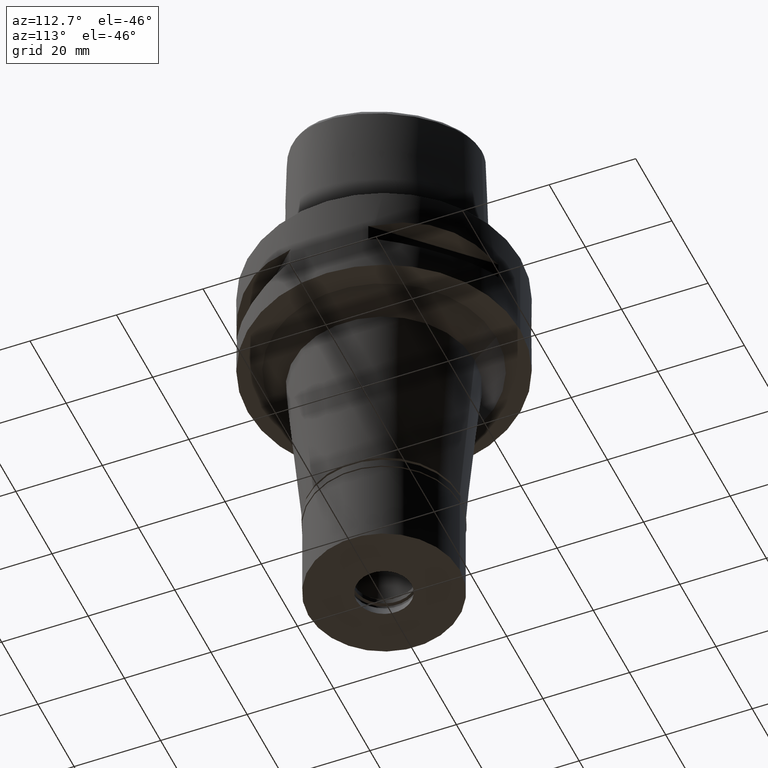
[diagram: clean part render]
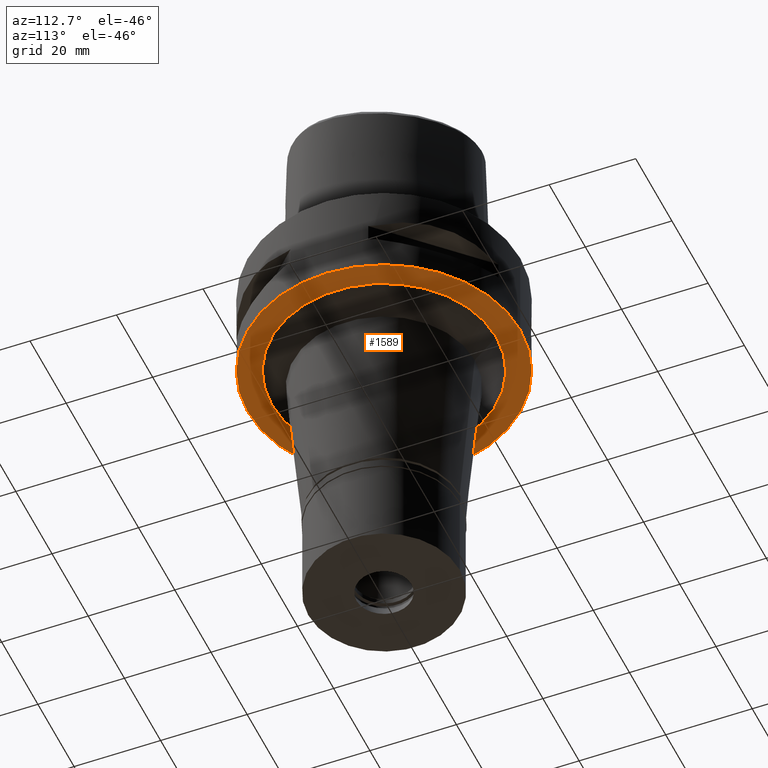
[diagram: same view with one face highlighted and labeled with its STEP entity id]
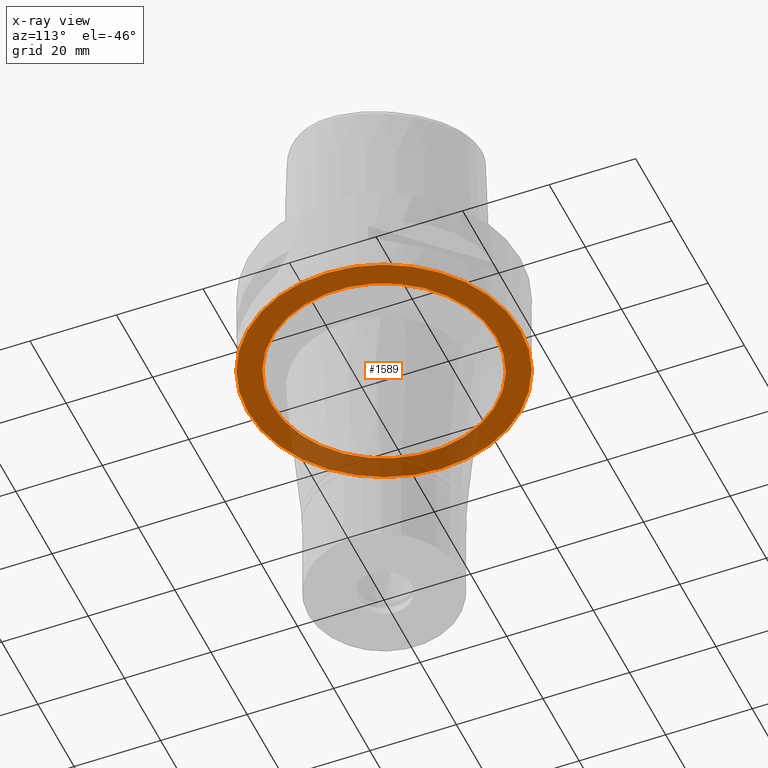
[diagram: x-ray of the same camera — body ghosted, the highlighted face saturated]
A machine part, auxiliary view. The second image highlights one B-rep face of the part: STEP entity #1589.
The next image is the same camera in x-ray: the body ghosted, the highlighted face saturated — about 24% of this face is hidden behind the body in this view.
In plain terms, the highlighted planar face has unit normal (0, 0, -1).
Its self-contained STEP definition (entity closure, byte-faithful):
#25 = AXIS2_PLACEMENT_3D ( 'NONE', #624, #2162, #3692 ) ;
#76 = EDGE_LOOP ( 'NONE', ( #2165, #3222 ) ) ;
#114 = CIRCLE ( 'NONE', #4382, 31.50000000000000000 ) ;
#130 = CARTESIAN_POINT ( 'NONE',  ( 0.0000000000000000000, 0.0000000000000000000, -22.00000000000000000 ) ) ;
#296 = CARTESIAN_POINT ( 'NONE',  ( 0.0000000000000000000, 1.275653338331999844E-14, -22.00000000000000000 ) ) ;
#614 = CARTESIAN_POINT ( 'NONE',  ( 0.0000000000000000000, -31.50000000000000000, -22.00000000000000000 ) ) ;
#624 = CARTESIAN_POINT ( 'NONE',  ( 0.0000000000000000000, 0.0000000000000000000, -22.00000000000000000 ) ) ;
#861 = ORIENTED_EDGE ( 'NONE', *, *, #1856, .F. ) ;
#942 = EDGE_CURVE ( 'NONE', #4507, #4936, #2199, .T. ) ;
#1209 = CARTESIAN_POINT ( 'NONE',  ( 0.0000000000000000000, 0.0000000000000000000, -22.00000000000000000 ) ) ;
#1292 = EDGE_CURVE ( 'NONE', #4554, #4194, #114, .T. ) ;
#1426 = DIRECTION ( 'NONE',  ( 0.0000000000000000000, 1.000000000000000000, 0.0000000000000000000 ) ) ;
#1503 = CARTESIAN_POINT ( 'NONE',  ( 0.0000000000000000000, 1.275653338331999844E-14, -22.00000000000000000 ) ) ;
#1562 = AXIS2_PLACEMENT_3D ( 'NONE', #130, #3200, #3606 ) ;
#1589 = ADVANCED_FACE ( 'NONE', ( #4721, #2028 ), #3909, .T. ) ;
#1856 = EDGE_CURVE ( 'NONE', #4194, #4554, #3331, .T. ) ;
#2028 = FACE_BOUND ( 'NONE', #76, .T. ) ;
#2162 = DIRECTION ( 'NONE',  ( 0.0000000000000000000, 0.0000000000000000000, -1.000000000000000000 ) ) ;
#2165 = ORIENTED_EDGE ( 'NONE', *, *, #3380, .F. ) ;
#2199 = CIRCLE ( 'NONE', #2521, 25.97329994197999881 ) ;
#2314 = DIRECTION ( 'NONE',  ( 0.0000000000000000000, 0.0000000000000000000, 1.000000000000000000 ) ) ;
#2401 = DIRECTION ( 'NONE',  ( 0.0000000000000000000, 0.0000000000000000000, -1.000000000000000000 ) ) ;
#2521 = AXIS2_PLACEMENT_3D ( 'NONE', #1209, #2401, #4726 ) ;
#3037 = ORIENTED_EDGE ( 'NONE', *, *, #1292, .F. ) ;
#3200 = DIRECTION ( 'NONE',  ( 0.0000000000000000000, 0.0000000000000000000, -1.000000000000000000 ) ) ;
#3222 = ORIENTED_EDGE ( 'NONE', *, *, #942, .F. ) ;
#3331 = CIRCLE ( 'NONE', #3734, 31.50000000000000000 ) ;
#3380 = EDGE_CURVE ( 'NONE', #4936, #4507, #4124, .T. ) ;
#3606 = DIRECTION ( 'NONE',  ( 0.0000000000000000000, -1.000000000000000000, 0.0000000000000000000 ) ) ;
#3692 = DIRECTION ( 'NONE',  ( 0.0000000000000000000, 1.000000000000000000, 0.0000000000000000000 ) ) ;
#3699 = CARTESIAN_POINT ( 'NONE',  ( 0.0000000000000000000, 31.50000000000000000, -22.00000000000000000 ) ) ;
#3734 = AXIS2_PLACEMENT_3D ( 'NONE', #1503, #2314, #4175 ) ;
#3909 = PLANE ( 'NONE',  #1562 ) ;
#4038 = CARTESIAN_POINT ( 'NONE',  ( 0.0000000000000000000, -25.97329994197999881, -22.00000000000000000 ) ) ;
#4124 = CIRCLE ( 'NONE', #25, 25.97329994197999881 ) ;
#4175 = DIRECTION ( 'NONE',  ( 0.0000000000000000000, -1.000000000000000000, 0.0000000000000000000 ) ) ;
#4194 = VERTEX_POINT ( 'NONE', #614 ) ;
#4382 = AXIS2_PLACEMENT_3D ( 'NONE', #296, #4896, #1426 ) ;
#4507 = VERTEX_POINT ( 'NONE', #4038 ) ;
#4554 = VERTEX_POINT ( 'NONE', #3699 ) ;
#4654 = CARTESIAN_POINT ( 'NONE',  ( 0.0000000000000000000, 25.97329994197999881, -22.00000000000000000 ) ) ;
#4721 = FACE_OUTER_BOUND ( 'NONE', #4805, .T. ) ;
#4726 = DIRECTION ( 'NONE',  ( 0.0000000000000000000, -1.000000000000000000, 0.0000000000000000000 ) ) ;
#4805 = EDGE_LOOP ( 'NONE', ( #3037, #861 ) ) ;
#4896 = DIRECTION ( 'NONE',  ( 0.0000000000000000000, 0.0000000000000000000, 1.000000000000000000 ) ) ;
#4936 = VERTEX_POINT ( 'NONE', #4654 ) ;